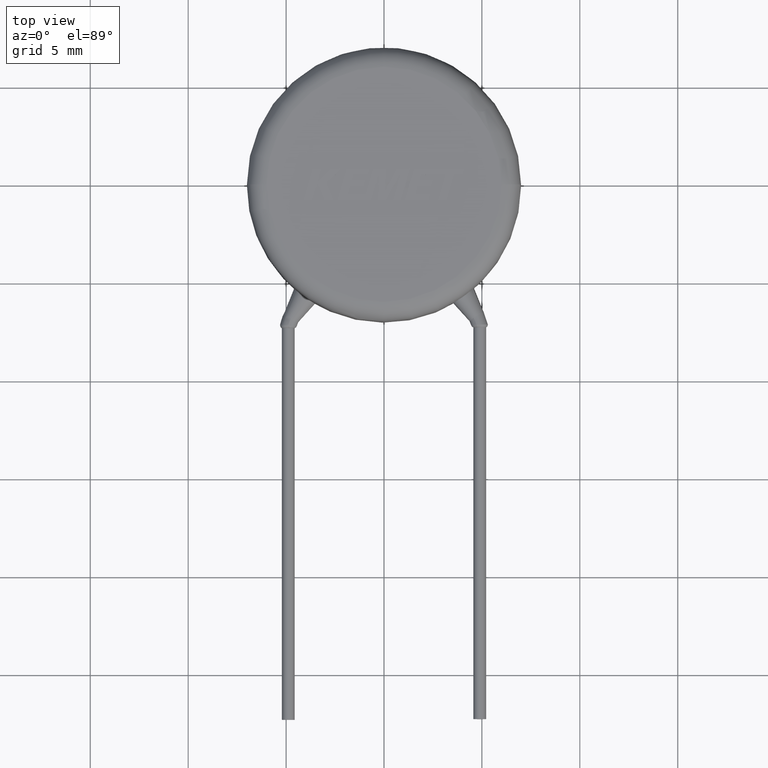
[diagram: clean part render]
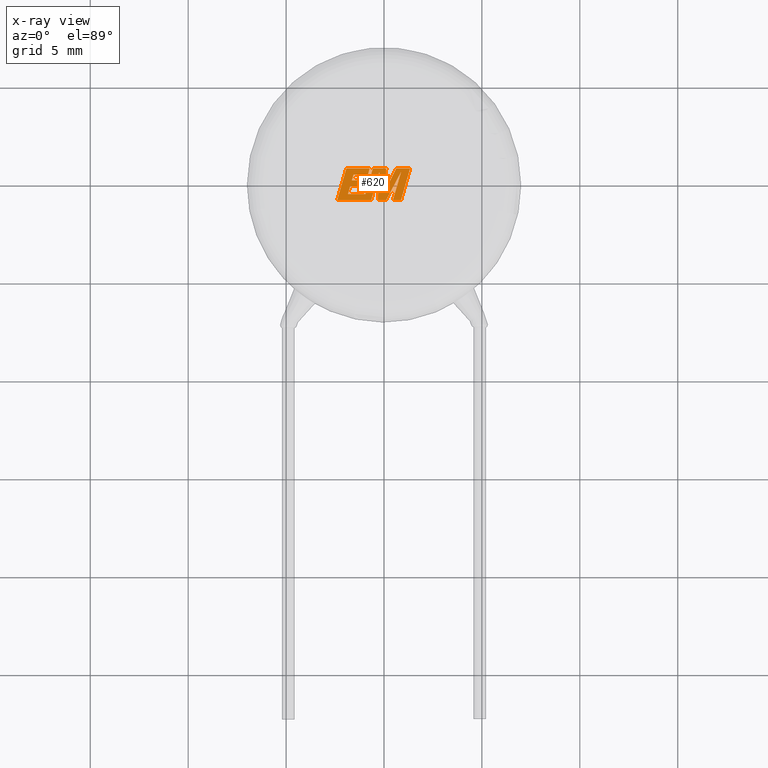
[diagram: x-ray — body ghosted, one internal face saturated and labeled with its STEP entity id]
A machine part, top view, then the same camera in x-ray: the body is ghosted and one INTERNAL B-rep face — a face not visible from any outside direction — is saturated and labeled: STEP entity #620.
In plain terms, the highlighted planar face has unit normal (0, 0, -1).
Its self-contained STEP definition (entity closure, byte-faithful):
#58 = DIRECTION ( 'NONE',  ( 0.4668459304955212000, 0.8843386665637611400, 0.0000000000000000000 ) ) ;
#83 = CARTESIAN_POINT ( 'NONE',  ( -1.841244438684286600, -0.5031808062937077600, 5.000000000000000000 ) ) ;
#107 = AXIS2_PLACEMENT_3D ( 'NONE', #1515, #547, #4091 ) ;
#138 = ORIENTED_EDGE ( 'NONE', *, *, #850, .F. ) ;
#155 = LINE ( 'NONE', #1157, #898 ) ;
#158 = EDGE_CURVE ( 'NONE', #3325, #3815, #2048, .T. ) ;
#168 = DIRECTION ( 'NONE',  ( -1.000000000000000000, 0.0000000000000000000, 0.0000000000000000000 ) ) ;
#201 = VECTOR ( 'NONE', #357, 999.9999999999998900 ) ;
#235 = VERTEX_POINT ( 'NONE', #2517 ) ;
#256 = VECTOR ( 'NONE', #3744, 1000.000000000000100 ) ;
#269 = DIRECTION ( 'NONE',  ( -1.000000000000000000, -3.065245663218813700E-016, 0.0000000000000000000 ) ) ;
#350 = EDGE_CURVE ( 'NONE', #4234, #235, #693, .T. ) ;
#354 = LINE ( 'NONE', #689, #2793 ) ;
#357 = DIRECTION ( 'NONE',  ( 0.05375259206908306100, 0.9985542843760948400, 0.0000000000000000000 ) ) ;
#397 = EDGE_CURVE ( 'NONE', #1741, #1325, #1709, .T. ) ;
#419 = EDGE_CURVE ( 'NONE', #1434, #4053, #955, .T. ) ;
#449 = EDGE_CURVE ( 'NONE', #2274, #2470, #1877, .T. ) ;
#472 = CARTESIAN_POINT ( 'NONE',  ( -1.727024355233241800, -0.1023070570000794000, 5.000000000000000000 ) ) ;
#473 = ORIENTED_EDGE ( 'NONE', *, *, #2021, .F. ) ;
#488 = LINE ( 'NONE', #1886, #834 ) ;
#519 = EDGE_CURVE ( 'NONE', #1439, #2430, #155, .T. ) ;
#524 = LINE ( 'NONE', #2972, #732 ) ;
#547 = DIRECTION ( 'NONE',  ( 0.0000000000000000000, 0.0000000000000000000, -1.000000000000000000 ) ) ;
#560 = LINE ( 'NONE', #3314, #3026 ) ;
#574 = ORIENTED_EDGE ( 'NONE', *, *, #3363, .F. ) ;
#579 = ORIENTED_EDGE ( 'NONE', *, *, #158, .F. ) ;
#596 = VECTOR ( 'NONE', #4155, 1000.000000000000000 ) ;
#603 = DIRECTION ( 'NONE',  ( -0.4443210308329058100, -0.8958676361827030400, 0.0000000000000000000 ) ) ;
#608 = DIRECTION ( 'NONE',  ( 0.2746459304916913900, 0.9615454294334474500, 0.0000000000000000000 ) ) ;
#616 = VERTEX_POINT ( 'NONE', #1142 ) ;
#620 = ADVANCED_FACE ( 'NONE', ( #1816 ), #3487, .T. ) ;
#621 = ORIENTED_EDGE ( 'NONE', *, *, #1693, .F. ) ;
#622 = CARTESIAN_POINT ( 'NONE',  ( -0.5717193531623995200, 0.8028809740081553900, 5.000000000000000000 ) ) ;
#632 = VERTEX_POINT ( 'NONE', #3477 ) ;
#657 = EDGE_CURVE ( 'NONE', #2943, #2519, #3884, .T. ) ;
#689 = CARTESIAN_POINT ( 'NONE',  ( -0.7325985123482697800, 0.8028809740081553900, 5.000000000000000000 ) ) ;
#693 = LINE ( 'NONE', #954, #3097 ) ;
#725 = DIRECTION ( 'NONE',  ( -1.000000000000000000, -9.098923155897416500E-017, 0.0000000000000000000 ) ) ;
#732 = VECTOR ( 'NONE', #1660, 1000.000000000000100 ) ;
#737 = EDGE_CURVE ( 'NONE', #4053, #2219, #488, .T. ) ;
#741 = VECTOR ( 'NONE', #4257, 1000.000000000000200 ) ;
#754 = DIRECTION ( 'NONE',  ( 1.000000000000000000, 3.776457229960508900E-016, 0.0000000000000000000 ) ) ;
#766 = ORIENTED_EDGE ( 'NONE', *, *, #1332, .F. ) ;
#790 = CARTESIAN_POINT ( 'NONE',  ( 0.4584585025193474400, -0.8100400000000505000, 5.000000000000000000 ) ) ;
#834 = VECTOR ( 'NONE', #269, 1000.000000000000000 ) ;
#850 = EDGE_CURVE ( 'NONE', #4022, #616, #2688, .T. ) ;
#881 = ORIENTED_EDGE ( 'NONE', *, *, #1498, .F. ) ;
#898 = VECTOR ( 'NONE', #1480, 1000.000000000000100 ) ;
#914 = CARTESIAN_POINT ( 'NONE',  ( -0.6506925620043220200, -0.8100400000000507200, 5.000000000000000000 ) ) ;
#947 = VECTOR ( 'NONE', #3267, 1000.000000000000000 ) ;
#954 = CARTESIAN_POINT ( 'NONE',  ( -0.2383919001103613800, 0.6259011478445739600, 5.000000000000000000 ) ) ;
#955 = LINE ( 'NONE', #1418, #256 ) ;
#994 = ORIENTED_EDGE ( 'NONE', *, *, #397, .F. ) ;
#1011 = VECTOR ( 'NONE', #754, 1000.000000000000000 ) ;
#1118 = EDGE_CURVE ( 'NONE', #3671, #2274, #524, .T. ) ;
#1126 = ORIENTED_EDGE ( 'NONE', *, *, #1118, .F. ) ;
#1142 = CARTESIAN_POINT ( 'NONE',  ( -1.034837898475127000, -0.1023070570000794000, 5.000000000000000000 ) ) ;
#1157 = CARTESIAN_POINT ( 'NONE',  ( 0.8727993342158464300, 0.6328161464528132600, 5.000000000000000000 ) ) ;
#1166 = CARTESIAN_POINT ( 'NONE',  ( 0.6246371578286207300, 0.8028809740081555000, 5.000000000000000000 ) ) ;
#1200 = VECTOR ( 'NONE', #2717, 1000.000000000000000 ) ;
#1225 = ORIENTED_EDGE ( 'NONE', *, *, #519, .F. ) ;
#1309 = EDGE_CURVE ( 'NONE', #2430, #1434, #4119, .T. ) ;
#1321 = VERTEX_POINT ( 'NONE', #2473 ) ;
#1325 = VERTEX_POINT ( 'NONE', #2898 ) ;
#1329 = LINE ( 'NONE', #4233, #3346 ) ;
#1332 = EDGE_CURVE ( 'NONE', #2219, #1321, #3451, .T. ) ;
#1418 = CARTESIAN_POINT ( 'NONE',  ( 0.8683266542630170300, -0.8100400000000505000, 5.000000000000000000 ) ) ;
#1424 = LINE ( 'NONE', #622, #3812 ) ;
#1434 = VERTEX_POINT ( 'NONE', #2855 ) ;
#1439 = VERTEX_POINT ( 'NONE', #2871 ) ;
#1480 = DIRECTION ( 'NONE',  ( -0.2760118818968563800, -0.9611542233438688000, 0.0000000000000000000 ) ) ;
#1496 = CARTESIAN_POINT ( 'NONE',  ( -2.388304202464826000, -0.8100400000000511600, 5.000000000000000000 ) ) ;
#1498 = EDGE_CURVE ( 'NONE', #2470, #4234, #2447, .T. ) ;
#1515 = CARTESIAN_POINT ( 'NONE',  ( 0.05364520311529428300, 0.1477804534629296700, 4.999999999999998200 ) ) ;
#1526 = EDGE_CURVE ( 'NONE', #632, #3671, #354, .T. ) ;
#1548 = CARTESIAN_POINT ( 'NONE',  ( 0.1151666265723650500, 0.8028809740081555000, 5.000000000000000000 ) ) ;
#1592 = LINE ( 'NONE', #3105, #741 ) ;
#1595 = DIRECTION ( 'NONE',  ( -0.2762517575166125700, -0.9610853065513916800, 0.0000000000000000000 ) ) ;
#1600 = VECTOR ( 'NONE', #168, 1000.000000000000000 ) ;
#1660 = DIRECTION ( 'NONE',  ( -0.2765379750249957200, -0.9610029908221278100, 0.0000000000000000000 ) ) ;
#1693 = EDGE_CURVE ( 'NONE', #1325, #4022, #2293, .T. ) ;
#1709 = LINE ( 'NONE', #3387, #1600 ) ;
#1741 = VERTEX_POINT ( 'NONE', #3937 ) ;
#1745 = LINE ( 'NONE', #2687, #2083 ) ;
#1816 = FACE_OUTER_BOUND ( 'NONE', #2718, .T. ) ;
#1847 = ORIENTED_EDGE ( 'NONE', *, *, #1309, .F. ) ;
#1877 = LINE ( 'NONE', #2748, #1011 ) ;
#1884 = VECTOR ( 'NONE', #2171, 1000.000000000000200 ) ;
#1886 = CARTESIAN_POINT ( 'NONE',  ( 1.332053327106866400, 0.8028809740081557200, 5.000000000000000000 ) ) ;
#1899 = ORIENTED_EDGE ( 'NONE', *, *, #3094, .F. ) ;
#1962 = CARTESIAN_POINT ( 'NONE',  ( -1.641955159546585600, 0.1958667022768675600, 5.000000000000000000 ) ) ;
#1996 = EDGE_CURVE ( 'NONE', #1321, #3325, #2138, .T. ) ;
#1999 = CARTESIAN_POINT ( 'NONE',  ( 0.4584585025193474400, -0.8100400000000505000, 5.000000000000000000 ) ) ;
#2012 = CARTESIAN_POINT ( 'NONE',  ( -0.5717193531623995200, 0.8028809740081553900, 5.000000000000000000 ) ) ;
#2021 = EDGE_CURVE ( 'NONE', #2270, #2467, #2791, .T. ) ;
#2030 = ORIENTED_EDGE ( 'NONE', *, *, #350, .F. ) ;
#2048 = LINE ( 'NONE', #1548, #596 ) ;
#2083 = VECTOR ( 'NONE', #3429, 1000.000000000000000 ) ;
#2135 = VECTOR ( 'NONE', #4168, 1000.000000000000000 ) ;
#2138 = LINE ( 'NONE', #2294, #201 ) ;
#2171 = DIRECTION ( 'NONE',  ( 0.2759782365590801000, 0.9611638845408936300, 0.0000000000000000000 ) ) ;
#2172 = ORIENTED_EDGE ( 'NONE', *, *, #1996, .F. ) ;
#2210 = CARTESIAN_POINT ( 'NONE',  ( -0.6506925620043220200, -0.8100400000000507200, 5.000000000000000000 ) ) ;
#2219 = VERTEX_POINT ( 'NONE', #1166 ) ;
#2265 = ORIENTED_EDGE ( 'NONE', *, *, #449, .F. ) ;
#2268 = CARTESIAN_POINT ( 'NONE',  ( 0.1111097850306722700, -0.8100400000000505000, 5.000000000000000000 ) ) ;
#2270 = VERTEX_POINT ( 'NONE', #4166 ) ;
#2274 = VERTEX_POINT ( 'NONE', #1496 ) ;
#2284 = CARTESIAN_POINT ( 'NONE',  ( -1.727024355233241800, -0.1023070570000794000, 5.000000000000000000 ) ) ;
#2285 = EDGE_CURVE ( 'NONE', #2467, #632, #1592, .T. ) ;
#2293 = LINE ( 'NONE', #83, #3785 ) ;
#2294 = CARTESIAN_POINT ( 'NONE',  ( 0.05313829806098593200, -0.3494104933153489600, 5.000000000000000000 ) ) ;
#2430 = VERTEX_POINT ( 'NONE', #1999 ) ;
#2447 = LINE ( 'NONE', #2210, #1884 ) ;
#2467 = VERTEX_POINT ( 'NONE', #3601 ) ;
#2470 = VERTEX_POINT ( 'NONE', #914 ) ;
#2473 = CARTESIAN_POINT ( 'NONE',  ( 0.05313829806098593200, -0.3494104933153489600, 5.000000000000000000 ) ) ;
#2517 = CARTESIAN_POINT ( 'NONE',  ( -0.3188805222471002800, -0.8100400000000507200, 5.000000000000000000 ) ) ;
#2519 = VERTEX_POINT ( 'NONE', #1962 ) ;
#2558 = EDGE_CURVE ( 'NONE', #2519, #2270, #1745, .T. ) ;
#2679 = VECTOR ( 'NONE', #603, 1000.000000000000000 ) ;
#2687 = CARTESIAN_POINT ( 'NONE',  ( -1.641955159546585600, 0.1958667022768675600, 5.000000000000000000 ) ) ;
#2688 = LINE ( 'NONE', #2284, #947 ) ;
#2717 = DIRECTION ( 'NONE',  ( 1.000000000000000000, 0.0000000000000000000, 0.0000000000000000000 ) ) ;
#2718 = EDGE_LOOP ( 'NONE', ( #3552, #3028, #1847, #1225, #574, #3917, #2030, #881, #2265, #1126, #3301, #3753, #473, #2980, #3164, #2727, #138, #621, #994, #1899, #579, #2172, #766 ) ) ;
#2727 = ORIENTED_EDGE ( 'NONE', *, *, #3019, .F. ) ;
#2748 = CARTESIAN_POINT ( 'NONE',  ( -0.9377876107404736800, -0.8100400000000509400, 5.000000000000000000 ) ) ;
#2752 = CARTESIAN_POINT ( 'NONE',  ( 1.332053327106866400, 0.8028809740081557200, 5.000000000000000000 ) ) ;
#2791 = LINE ( 'NONE', #4010, #1200 ) ;
#2793 = VECTOR ( 'NONE', #725, 1000.000000000000000 ) ;
#2839 = CARTESIAN_POINT ( 'NONE',  ( -1.924170475215969200, 0.8028809740081551700, 5.000000000000000000 ) ) ;
#2855 = CARTESIAN_POINT ( 'NONE',  ( 0.8683266542630170300, -0.8100400000000505000, 5.000000000000000000 ) ) ;
#2871 = CARTESIAN_POINT ( 'NONE',  ( 0.8727993342158464300, 0.6328161464528132600, 5.000000000000000000 ) ) ;
#2889 = CARTESIAN_POINT ( 'NONE',  ( -0.9496706177018468000, 0.1958667022768675600, 5.000000000000000000 ) ) ;
#2898 = CARTESIAN_POINT ( 'NONE',  ( -1.841244438684286600, -0.5031808062937077600, 5.000000000000000000 ) ) ;
#2907 = VECTOR ( 'NONE', #3984, 1000.000000000000000 ) ;
#2935 = CARTESIAN_POINT ( 'NONE',  ( -0.9496706177018468000, 0.1958667022768675600, 5.000000000000000000 ) ) ;
#2943 = VERTEX_POINT ( 'NONE', #2935 ) ;
#2972 = CARTESIAN_POINT ( 'NONE',  ( -1.924170475215969200, 0.8028809740081551700, 5.000000000000000000 ) ) ;
#2980 = ORIENTED_EDGE ( 'NONE', *, *, #2558, .F. ) ;
#3019 = EDGE_CURVE ( 'NONE', #616, #2943, #1329, .T. ) ;
#3026 = VECTOR ( 'NONE', #58, 1000.000000000000100 ) ;
#3028 = ORIENTED_EDGE ( 'NONE', *, *, #419, .F. ) ;
#3094 = EDGE_CURVE ( 'NONE', #3815, #1741, #1424, .T. ) ;
#3097 = VECTOR ( 'NONE', #4229, 1000.000000000000100 ) ;
#3105 = CARTESIAN_POINT ( 'NONE',  ( -0.8197961544161502800, 0.4958697484202254600, 5.000000000000000000 ) ) ;
#3164 = ORIENTED_EDGE ( 'NONE', *, *, #657, .F. ) ;
#3174 = CARTESIAN_POINT ( 'NONE',  ( 0.1151666265723650500, 0.8028809740081555000, 5.000000000000000000 ) ) ;
#3248 = CARTESIAN_POINT ( 'NONE',  ( 0.6246371578286207300, 0.8028809740081555000, 5.000000000000000000 ) ) ;
#3267 = DIRECTION ( 'NONE',  ( 1.000000000000000000, 0.0000000000000000000, 0.0000000000000000000 ) ) ;
#3301 = ORIENTED_EDGE ( 'NONE', *, *, #1526, .F. ) ;
#3314 = CARTESIAN_POINT ( 'NONE',  ( 0.1111097850306722700, -0.8100400000000505000, 5.000000000000000000 ) ) ;
#3325 = VERTEX_POINT ( 'NONE', #3174 ) ;
#3338 = DIRECTION ( 'NONE',  ( 0.2740217765954076100, 0.9617234872620593600, 0.0000000000000000000 ) ) ;
#3346 = VECTOR ( 'NONE', #608, 1000.000000000000100 ) ;
#3351 = VECTOR ( 'NONE', #3415, 1000.000000000000000 ) ;
#3363 = EDGE_CURVE ( 'NONE', #3393, #1439, #560, .T. ) ;
#3387 = CARTESIAN_POINT ( 'NONE',  ( -0.9471302139613339000, -0.5031808062937077600, 5.000000000000000000 ) ) ;
#3393 = VERTEX_POINT ( 'NONE', #2268 ) ;
#3415 = DIRECTION ( 'NONE',  ( 1.000000000000000000, 2.645246203865972700E-016, 0.0000000000000000000 ) ) ;
#3429 = DIRECTION ( 'NONE',  ( 0.2793947940878323000, 0.9601763114327585000, 0.0000000000000000000 ) ) ;
#3451 = LINE ( 'NONE', #3248, #2679 ) ;
#3477 = CARTESIAN_POINT ( 'NONE',  ( -0.7325985123482697800, 0.8028809740081553900, 5.000000000000000000 ) ) ;
#3487 = PLANE ( 'NONE',  #107 ) ;
#3552 = ORIENTED_EDGE ( 'NONE', *, *, #737, .F. ) ;
#3567 = CARTESIAN_POINT ( 'NONE',  ( -0.3188805222471002800, -0.8100400000000507200, 5.000000000000000000 ) ) ;
#3601 = CARTESIAN_POINT ( 'NONE',  ( -0.8197961544161502800, 0.4958697484202254600, 5.000000000000000000 ) ) ;
#3671 = VERTEX_POINT ( 'NONE', #2839 ) ;
#3744 = DIRECTION ( 'NONE',  ( 0.2763139702539116900, 0.9610674221107072800, 0.0000000000000000000 ) ) ;
#3753 = ORIENTED_EDGE ( 'NONE', *, *, #2285, .F. ) ;
#3785 = VECTOR ( 'NONE', #3338, 1000.000000000000100 ) ;
#3812 = VECTOR ( 'NONE', #1595, 1000.000000000000200 ) ;
#3815 = VERTEX_POINT ( 'NONE', #2012 ) ;
#3833 = EDGE_CURVE ( 'NONE', #235, #3393, #4258, .T. ) ;
#3884 = LINE ( 'NONE', #2889, #2135 ) ;
#3917 = ORIENTED_EDGE ( 'NONE', *, *, #3833, .F. ) ;
#3937 = CARTESIAN_POINT ( 'NONE',  ( -0.9471302139613339000, -0.5031808062937077600, 5.000000000000000000 ) ) ;
#3984 = DIRECTION ( 'NONE',  ( 1.000000000000000000, 2.521457237837486500E-016, 0.0000000000000000000 ) ) ;
#4010 = CARTESIAN_POINT ( 'NONE',  ( -1.554659432392192300, 0.4958697484202254600, 5.000000000000000000 ) ) ;
#4022 = VERTEX_POINT ( 'NONE', #472 ) ;
#4053 = VERTEX_POINT ( 'NONE', #2752 ) ;
#4091 = DIRECTION ( 'NONE',  ( -1.000000000000000000, 0.0000000000000000000, 0.0000000000000000000 ) ) ;
#4119 = LINE ( 'NONE', #790, #3351 ) ;
#4128 = CARTESIAN_POINT ( 'NONE',  ( -0.2383919001103613800, 0.6259011478445739600, 5.000000000000000000 ) ) ;
#4155 = DIRECTION ( 'NONE',  ( -1.000000000000000000, -3.156862141527944000E-016, 0.0000000000000000000 ) ) ;
#4166 = CARTESIAN_POINT ( 'NONE',  ( -1.554659432392192300, 0.4958697484202254600, 5.000000000000000000 ) ) ;
#4168 = DIRECTION ( 'NONE',  ( -1.000000000000000000, 0.0000000000000000000, 0.0000000000000000000 ) ) ;
#4229 = DIRECTION ( 'NONE',  ( -0.05596501978068215600, -0.9984327301130245800, 0.0000000000000000000 ) ) ;
#4233 = CARTESIAN_POINT ( 'NONE',  ( -1.034837898475127000, -0.1023070570000794000, 5.000000000000000000 ) ) ;
#4234 = VERTEX_POINT ( 'NONE', #4128 ) ;
#4257 = DIRECTION ( 'NONE',  ( 0.2732148821745866700, 0.9619530280415601300, 0.0000000000000000000 ) ) ;
#4258 = LINE ( 'NONE', #3567, #2907 ) ;